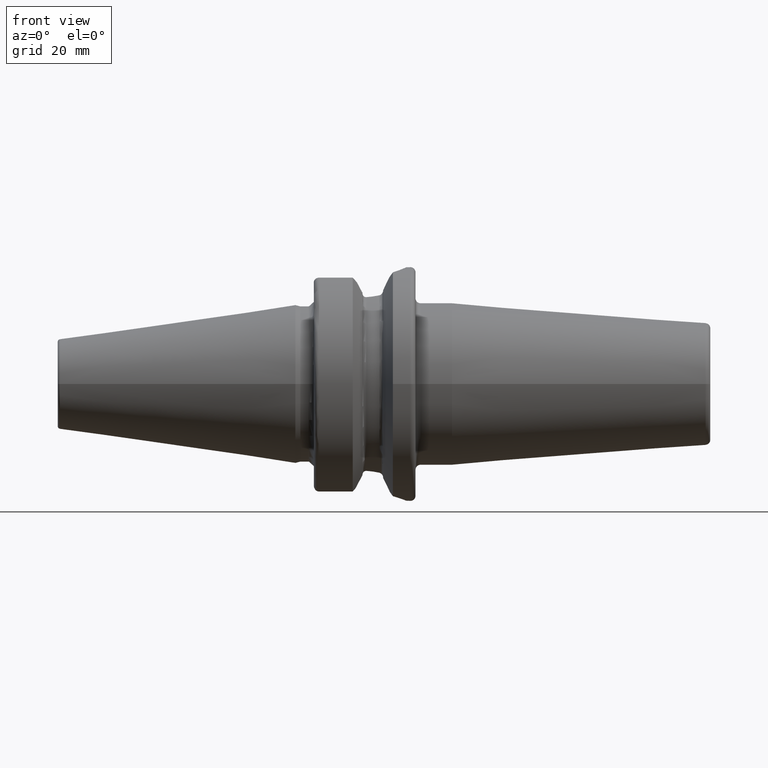
[diagram: clean part render]
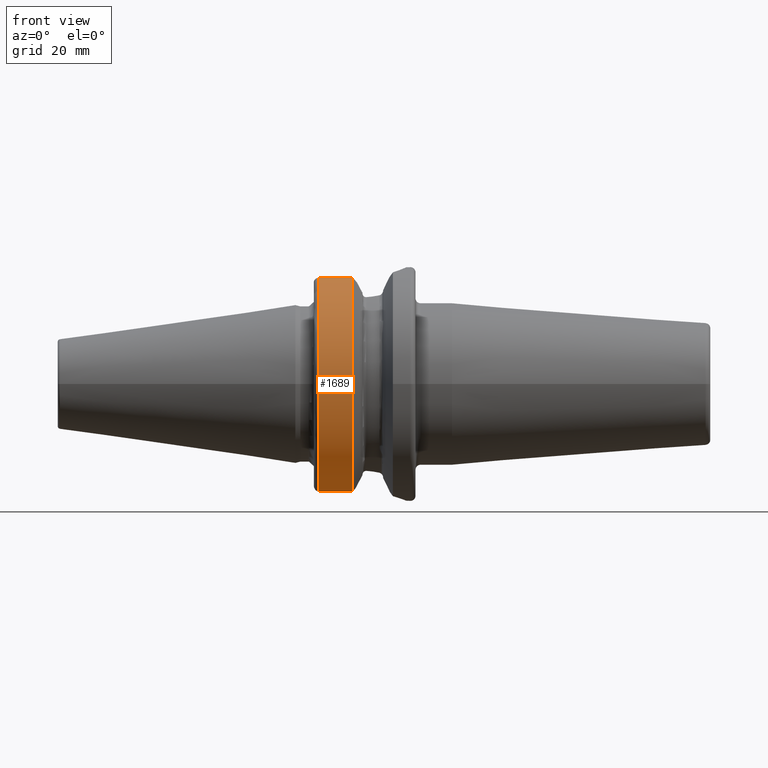
[diagram: same view with one face highlighted and labeled with its STEP entity id]
A machine part, front view. The second image highlights one B-rep face of the part: STEP entity #1689.
In plain terms, the highlighted cylindrical surface (partial cylindrical patch) has radius 22.99 mm, axis along (1, 0, 0).
Its self-contained STEP definition (entity closure, byte-faithful):
#190=CARTESIAN_POINT('',(9.650924158743E0,0.E0,0.E0));
#191=DIRECTION('',(1.E0,0.E0,0.E0));
#192=DIRECTION('',(0.E0,-4.135970895862E-1,9.104600197075E-1));
#193=AXIS2_PLACEMENT_3D('',#190,#191,#192);
#195=DIRECTION('',(9.999999999953E-1,1.691137854943E-6,-2.559578267209E-6));
#196=VECTOR('',#195,6.650924186073E0);
#197=CARTESIAN_POINT('',(2.999999972701E0,-9.014923952472E0,-2.114877606078E1));
#198=LINE('',#197,#196);
#199=CARTESIAN_POINT('',(3.E0,0.E0,0.E0));
#200=DIRECTION('',(-1.E0,0.E0,0.E0));
#201=DIRECTION('',(0.E0,-3.921232146517E-1,-9.199127048428E-1));
#202=AXIS2_PLACEMENT_3D('',#199,#200,#201);
#204=DIRECTION('',(-9.999999999877E-1,2.689360368840E-6,4.174830096868E-6));
#205=VECTOR('',#204,6.650924175867E0);
#206=CARTESIAN_POINT('',(9.650924158743E0,-9.508597089586E0,2.093147585308E1));
#207=LINE('',#206,#205);
#612=CARTESIAN_POINT('',(2.999999972701E0,-9.014923952472E0,-2.114877606078E1));
#1322=CARTESIAN_POINT('',(9.650924158743E0,-9.508597089586E0,2.093147585308E1));
#1323=CARTESIAN_POINT('',(9.650924158743E0,-9.014912704843E0,
-2.114879308434E1));
#1324=VERTEX_POINT('',#1322);
#1325=VERTEX_POINT('',#1323);
#1338=CARTESIAN_POINT('',(3.E0,-9.508621994147E0,2.093146453960E1));
#1339=VERTEX_POINT('',#1338);
#1360=VERTEX_POINT('',#612);
#1675=CARTESIAN_POINT('',(-5.192E1,0.E0,0.E0));
#1676=DIRECTION('',(1.E0,0.E0,0.E0));
#1677=DIRECTION('',(0.E0,-1.E0,0.E0));
#1678=AXIS2_PLACEMENT_3D('',#1675,#1676,#1677);
#1679=CYLINDRICAL_SURFACE('',#1678,2.299E1);
#1680=ORIENTED_EDGE('',*,*,#1664,.T.);
#1682=ORIENTED_EDGE('',*,*,#1681,.F.);
#1684=ORIENTED_EDGE('',*,*,#1683,.T.);
#1686=ORIENTED_EDGE('',*,*,#1685,.F.);
#1687=EDGE_LOOP('',(#1680,#1682,#1684,#1686));
#1688=FACE_OUTER_BOUND('',#1687,.F.);
#1689=ADVANCED_FACE('',(#1688),#1679,.T.);
#194=CIRCLE('',#193,2.299E1);
#203=CIRCLE('',#202,2.299E1);
#1664=EDGE_CURVE('',#1324,#1325,#194,.T.);
#1681=EDGE_CURVE('',#1360,#1325,#198,.T.);
#1683=EDGE_CURVE('',#1360,#1339,#203,.T.);
#1685=EDGE_CURVE('',#1324,#1339,#207,.T.);